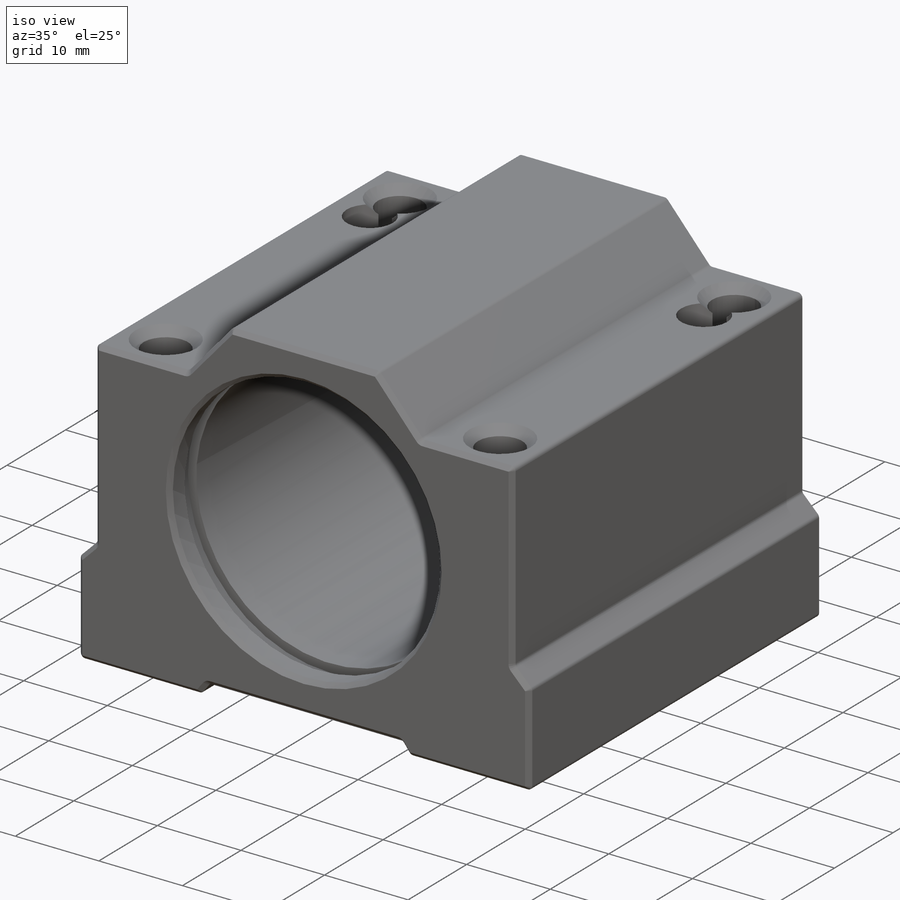
[diagram: iso view]
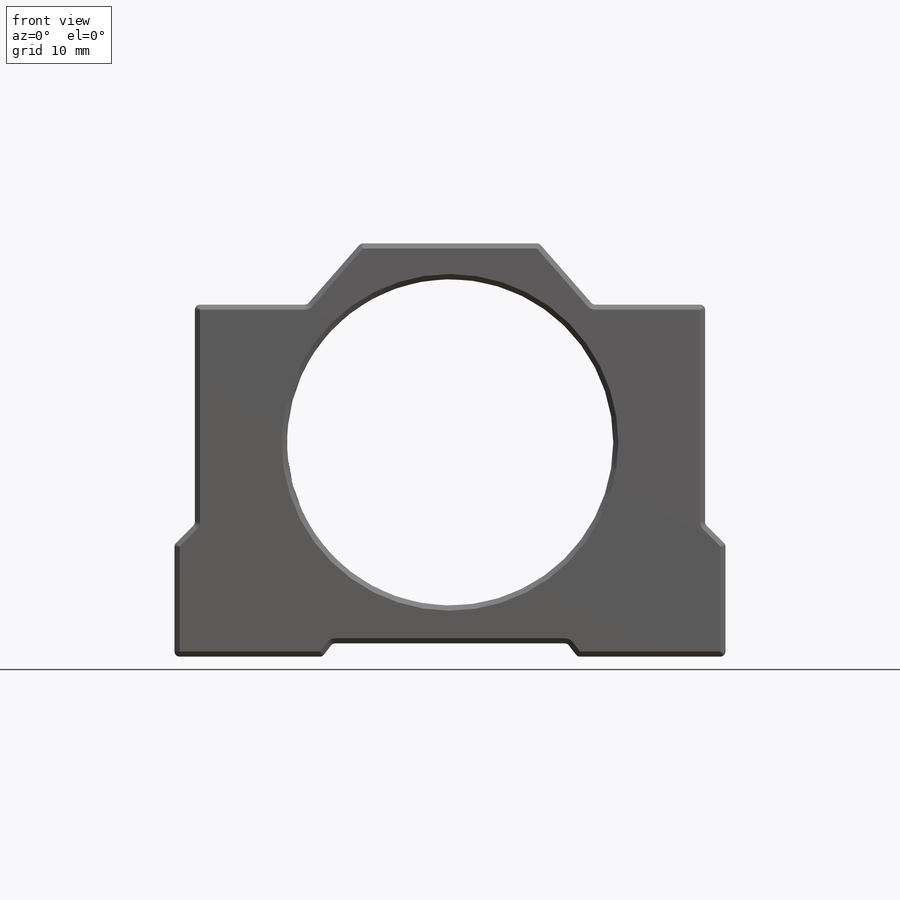
[diagram: front view]
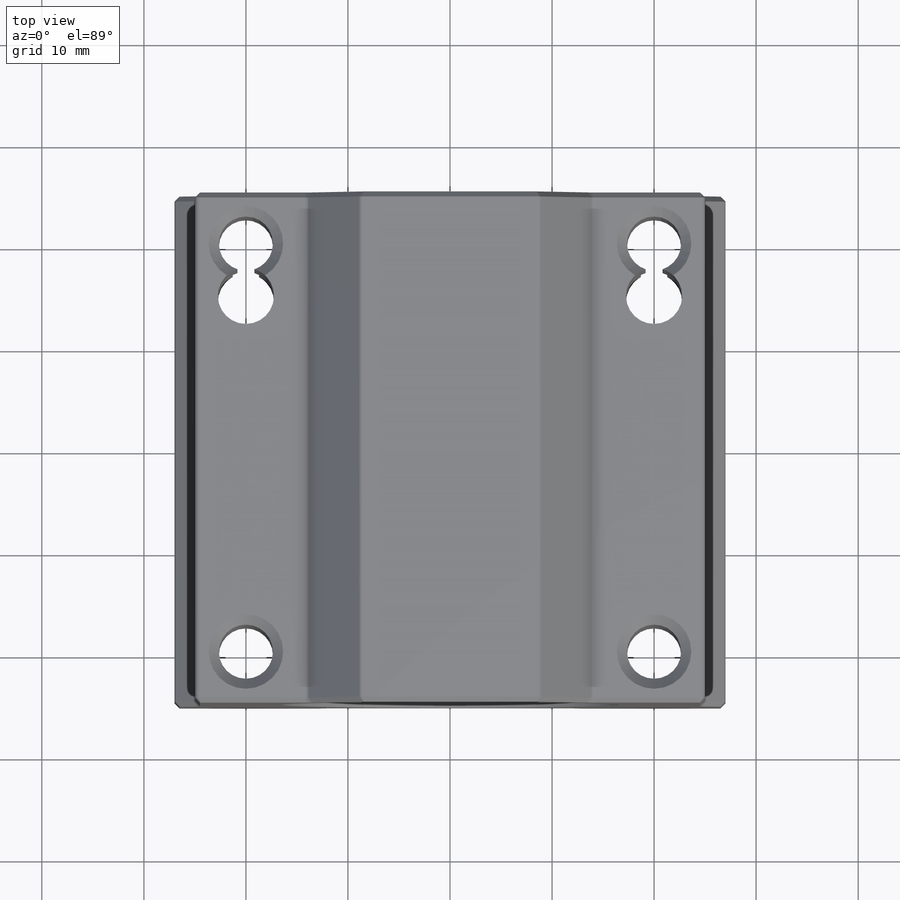
[diagram: top view]
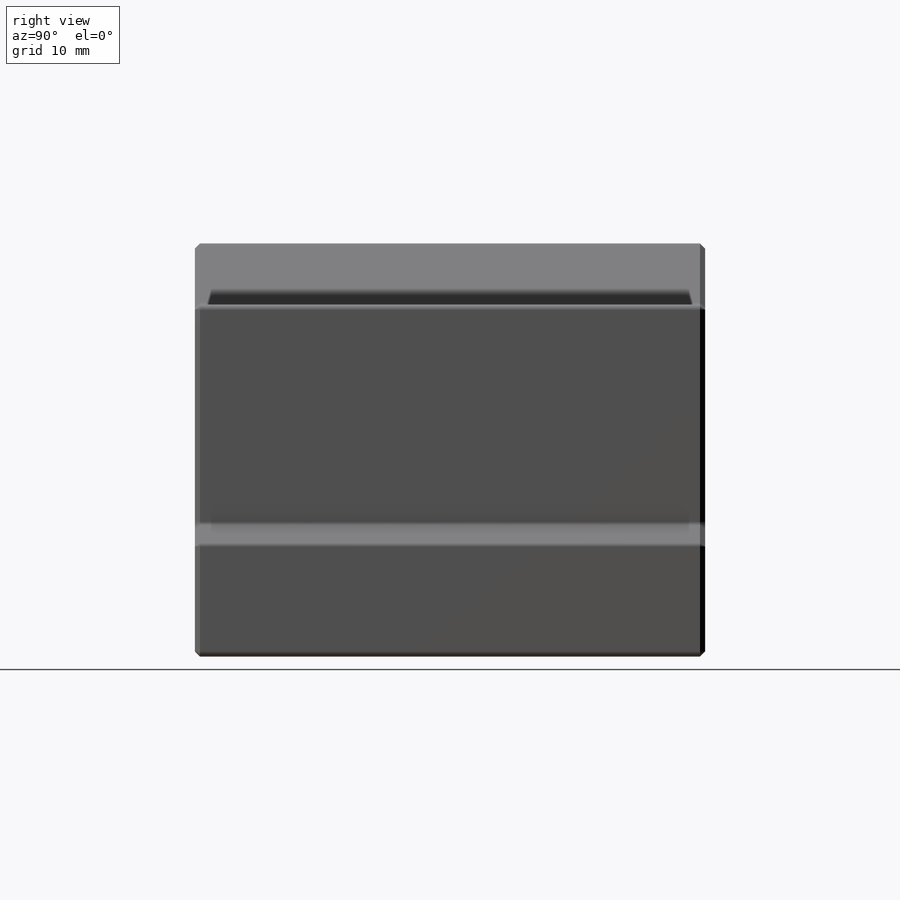
[diagram: right view]
SOLIDWORKS PART (.sldprt)
format: sldprt  version: not decoded by parser v0  size: 483,840 bytes
history: native  units: mm
features: sketch x8, cut_extrude x5, plane x3, chamfer x3, extrude x2, material x1, fillet x1, cut_revolve x1 (+9 scaffold rows collapsed)
feature tree (33):
  scaffold x9  (default folders/planes/origin — collapsed)
  material  "Сплав 1060"
  plane  "Спереди"
  plane  "Сверху"
  plane  "Справа"
  sketch  "Эскиз1"  dims[c1.D1=~60.795721mm c1.D2=~129.559288mm c2.D1=40.5mm c2.D2=50.0mm]
  extrude  "Бобышка-Вытянуть1"  Depth=50mm
  sketch  "Эскиз5"  dims[D1=~80.64252mm D2=40.0mm D3=40.0mm]
  cut_extrude  "Вырез-Вытянуть2"  [1 undecoded]
  sketch  "Эскиз6"  dims[D1=17.5mm D2=6.0mm D3=28.0mm]
  cut_extrude  "Вырез-Вытянуть3"  [1 undecoded]
  sketch  "Эскиз7"  dims[D1=25.0mm D2=23.0mm D3=1.3mm]
  cut_extrude  "Вырез-Вытянуть4"  [1 undecoded]
  sketch  "Эскиз8"  dims[D1=54.0mm D2=11.0mm D3=13.0mm]
  extrude  "Бобышка-Вытянуть2"  [1 undecoded]
  chamfer  "Фаска1"  Distance=1mm Angle=45deg
  sketch  "Эскиз9"  dims[D1=6.0mm]
  cut_extrude  "M6x12"  Depth=12mm
  fillet  "Скругление1"  Radius=0.5mm
  chamfer  "Фаска3"  Distance=0.5mm Angle=45deg
  sketch  "Эскиз10"  dims[c1.D1=32.0mm c1.D2=32.0mm c1.D3=32.0mm c2.D2=3.5mm c2.D3=21.0mm c3.D2=21.0mm]
  cut_extrude  "Вырез-Вытянуть6"  [1 undecoded]
  chamfer  "Фаска4"  Distance=0.5mm Angle=45deg
  sketch  "Эскиз11"  dims[c1.D1=4.5mm c1.D2=~2.936492mm c1.D3=~1.863508mm c2.D2=2.0mm c2.D3=17.0mm]
  cut_revolve  "Вырез-Повернуть1"  Angle=360deg
decode coverage: 15 of 20 modeling features carry decoded parameters
note: ~ marks probable driven/reference dimensions
note: 5 parameter values undecoded
summary: no parameter record found for 5 features
note: suppression state not decoded; provenance and decode notes live in map.json
